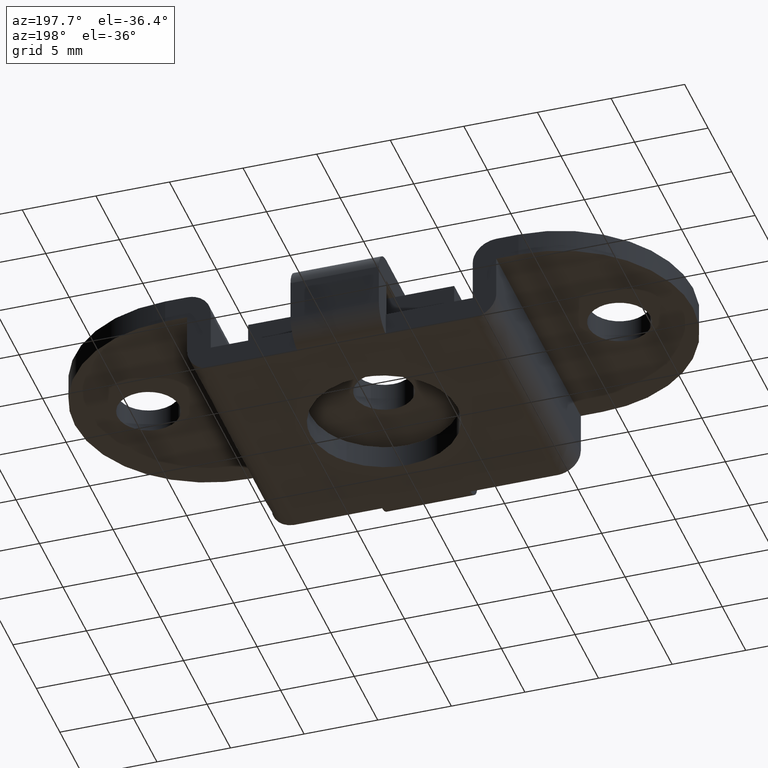
[diagram: clean part render]
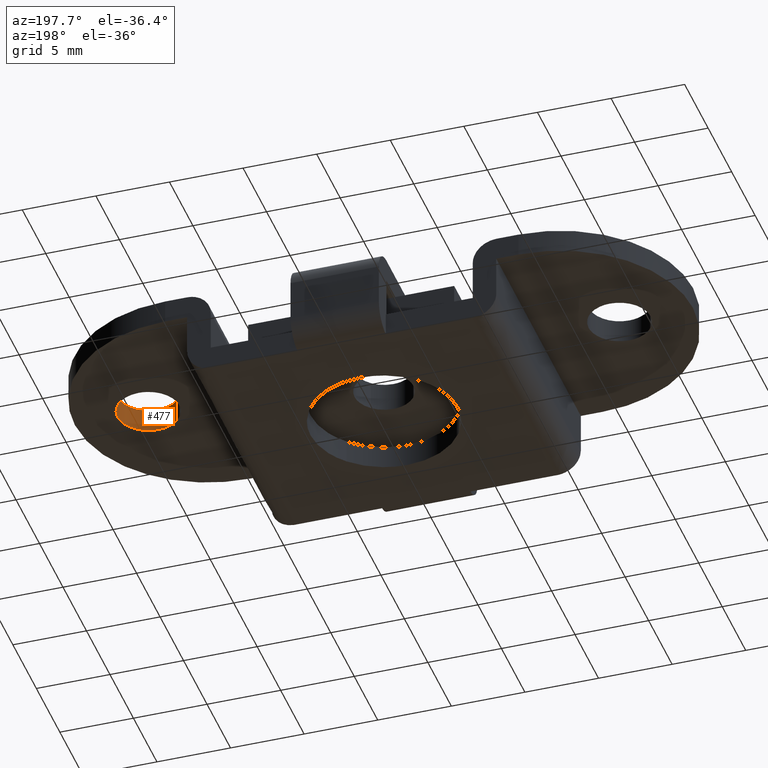
[diagram: same view with one face highlighted and labeled with its STEP entity id]
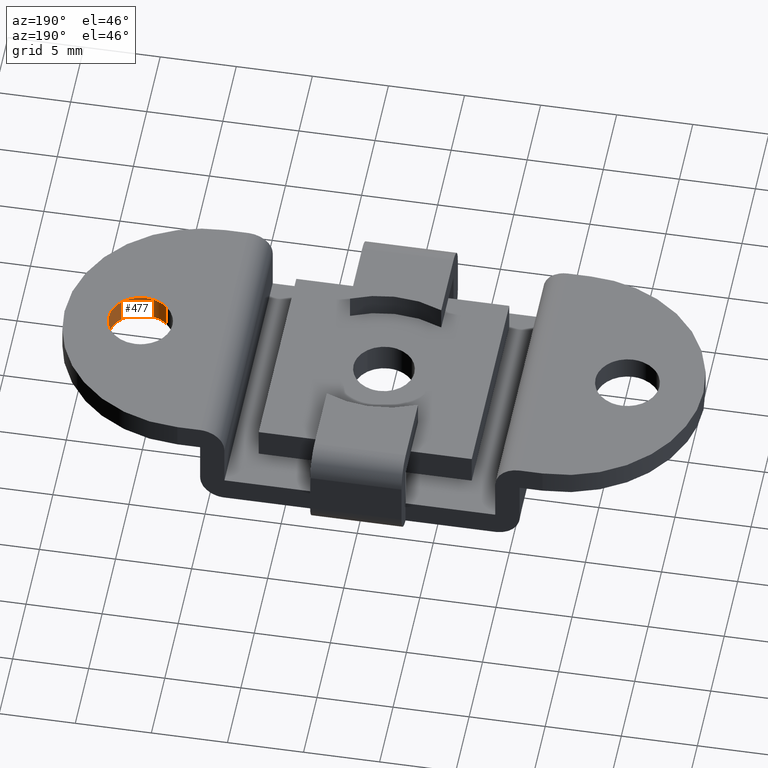
[diagram: same view with one face highlighted and labeled with its STEP entity id]
A machine part, auxiliary view. The second image highlights one B-rep face of the part: STEP entity #477.
A second angle (auxiliary view) of the same face is appended — the face is thin or edge-on in the first view.
In plain terms, the highlighted face is a freeform B-spline surface patch.
Its self-contained STEP definition (entity closure, byte-faithful):
#368=CARTESIAN_POINT('',(14.581260564007110,-1.548282407301260,4.360000000000000));
#369=CARTESIAN_POINT('',(16.129542971308378,-2.967021843294146,4.360000000000001));
#370=CARTESIAN_POINT('',(17.548282407301262,-1.418739435992886,4.360000000000000));
#371=CARTESIAN_POINT('',(18.967021843294145,0.129542971308374,4.360000000000001));
#372=CARTESIAN_POINT('',(17.418739435992890,1.548282407301260,4.360000000000000));
#373=CARTESIAN_POINT('',(14.581260564007110,-1.548282407301260,6.041000000000000));
#374=CARTESIAN_POINT('',(16.129542971308378,-2.967021843294146,6.041000000000002));
#375=CARTESIAN_POINT('',(17.548282407301262,-1.418739435992886,6.041000000000000));
#376=CARTESIAN_POINT('',(18.967021843294145,0.129542971308374,6.041000000000002));
#377=CARTESIAN_POINT('',(17.418739435992890,1.548282407301260,6.041000000000000));
#385=(BOUNDED_SURFACE()B_SPLINE_SURFACE(2,1,((#368,#373),(#369,#374),(#370,#375),(#371,#376),(#372,#377)),.UNSPECIFIED.,.F.,.F.,.U.)B_SPLINE_SURFACE_WITH_KNOTS((3,2,3),(2,2),(0.0,3.479393923934000,6.958787847867999),(0.0,1.0),.UNSPECIFIED.)GEOMETRIC_REPRESENTATION_ITEM()RATIONAL_B_SPLINE_SURFACE(((1.0,1.0),(0.707106781186548,0.707106781186548),(1.0,1.0),(0.707106781186548,0.707106781186548),(1.0,1.0)))REPRESENTATION_ITEM('')SURFACE());
#386=CARTESIAN_POINT('',(15.999999487898320,-2.099999999999938,4.400000000000000));
#387=VERTEX_POINT('',#386);
#388=CARTESIAN_POINT('',(14.581260498776119,-1.548282520513495,4.399999999997583));
#389=VERTEX_POINT('',#388);
#390=CARTESIAN_POINT('',(15.999999487898320,-2.099999999999938,4.400000000000000));
#391=CARTESIAN_POINT('',(15.837738048500670,-2.100027915801006,4.399999999999723));
#392=CARTESIAN_POINT('',(15.480761532178191,-2.058454504587345,4.399999999999127));
#393=CARTESIAN_POINT('',(14.992137915016500,-1.868472685713964,4.399999999998281));
#394=CARTESIAN_POINT('',(14.700879486970109,-1.657914271976027,4.399999999997790));
#395=CARTESIAN_POINT('',(14.581260498776119,-1.548282520513495,4.399999999997583));
#396=B_SPLINE_CURVE_WITH_KNOTS('',3,(#390,#391,#392,#393,#394,#395),.UNSPECIFIED.,.F.,.U.,(4,1,1,4),(0.000000011098330,0.486787928043428,1.070926665411412,1.557714582366830),.UNSPECIFIED.);
#397=EDGE_CURVE('',#387,#389,#396,.T.);
#398=ORIENTED_EDGE('',*,*,#397,.T.);
#399=CARTESIAN_POINT('',(14.581260498520830,-1.548282520279563,6.0));
#400=VERTEX_POINT('',#399);
#401=CARTESIAN_POINT('',(14.581260498776119,-1.548282520513495,4.399999999997583));
#402=CARTESIAN_POINT('',(14.581260498520830,-1.548282520279563,6.0));
#403=QUASI_UNIFORM_CURVE('',1,(#401,#402),.UNSPECIFIED.,.F.,.U.);
#404=EDGE_CURVE('',#389,#400,#403,.T.);
#405=ORIENTED_EDGE('',*,*,#404,.T.);
#406=CARTESIAN_POINT('',(15.999999487898320,-2.099999999999938,6.0));
#407=VERTEX_POINT('',#406);
#408=CARTESIAN_POINT('',(15.999999487898320,-2.099999999999938,6.0));
#409=CARTESIAN_POINT('',(15.862076283162880,-2.100017602895612,5.999999999999991));
#410=CARTESIAN_POINT('',(15.586240718931410,-2.072728873233978,6.000000000000012));
#411=CARTESIAN_POINT('',(15.204084069787680,-1.956390947703279,5.999999999999999));
#412=CARTESIAN_POINT('',(14.864763140071670,-1.779289379170065,5.999999999999996));
#413=CARTESIAN_POINT('',(14.670978065494211,-1.630505774760450,5.999999999999981));
#414=CARTESIAN_POINT('',(14.581260498520830,-1.548282520279563,6.0));
#415=B_SPLINE_CURVE_WITH_KNOTS('',3,(#408,#409,#410,#411,#412,#413,#414),.UNSPECIFIED.,.F.,.U.,(4,1,1,1,4),(0.000000011097158,0.413768375171426,0.827530424680338,1.192625660979388,1.557714582713103),.UNSPECIFIED.);
#416=EDGE_CURVE('',#407,#400,#415,.T.);
#417=ORIENTED_EDGE('',*,*,#416,.F.);
#418=CARTESIAN_POINT('',(18.100000000000001,0.0,6.0));
#419=VERTEX_POINT('',#418);
#420=CARTESIAN_POINT('',(18.100000000000001,0.0,6.0));
#421=CARTESIAN_POINT('',(18.100086939034931,-0.206173555843778,5.999999999999996));
#422=CARTESIAN_POINT('',(18.045160243486059,-0.575514764453041,6.000000000000007));
#423=CARTESIAN_POINT('',(17.844674499679609,-1.035339620001508,5.999999999999998));
#424=CARTESIAN_POINT('',(17.604147260265460,-1.372399615545883,6.000000000000003));
#425=CARTESIAN_POINT('',(17.289459436833379,-1.679547146720291,6.000000000000012));
#426=CARTESIAN_POINT('',(16.920453760059939,-1.906906748417729,5.999999999999973));
#427=CARTESIAN_POINT('',(16.463850793409652,-2.063940389481433,6.000000000000038));
#428=CARTESIAN_POINT('',(16.171808127432030,-2.100047197243688,5.999999999999981));
#429=CARTESIAN_POINT('',(15.999999487898320,-2.099999999999938,6.0));
#430=B_SPLINE_CURVE_WITH_KNOTS('',3,(#420,#421,#422,#423,#424,#425,#426,#427,#428,#429),.UNSPECIFIED.,.F.,.U.,(4,1,1,1,1,1,1,4),(0.000000046078098,0.618504639973074,1.108160000424336,1.494727046472961,1.855502201907417,2.422477338068444,2.783279105107428,3.298693272671217),.UNSPECIFIED.);
#431=EDGE_CURVE('',#419,#407,#430,.T.);
#432=ORIENTED_EDGE('',*,*,#431,.F.);
#433=CARTESIAN_POINT('',(17.418739501479170,1.548282520279557,6.0));
#434=VERTEX_POINT('',#433);
#435=CARTESIAN_POINT('',(17.418739501479170,1.548282520279557,6.0));
#436=CARTESIAN_POINT('',(17.592678430637559,1.389111595608765,5.999999999999996));
#437=CARTESIAN_POINT('',(17.846410872613500,1.062184082451126,6.000000000000013));
#438=CARTESIAN_POINT('',(18.057361464461820,0.516832787514381,5.999999999999973));
#439=CARTESIAN_POINT('',(18.100043193173921,0.172286885963432,6.000000000000020));
#440=CARTESIAN_POINT('',(18.100000000000001,0.0,6.0));
#441=B_SPLINE_CURVE_WITH_KNOTS('',3,(#435,#436,#437,#438,#439,#440),.UNSPECIFIED.,.F.,.U.,(4,1,1,4),(0.000000012917390,0.707277324707163,1.224123831606799,1.740978180980072),.UNSPECIFIED.);
#442=EDGE_CURVE('',#434,#419,#441,.T.);
#443=ORIENTED_EDGE('',*,*,#442,.F.);
#444=CARTESIAN_POINT('',(17.418739501223879,1.548282520513488,4.399999999997584));
#445=VERTEX_POINT('',#444);
#446=CARTESIAN_POINT('',(17.418739501223879,1.548282520513488,4.399999999997584));
#447=CARTESIAN_POINT('',(17.418739501479170,1.548282520279557,6.0));
#448=QUASI_UNIFORM_CURVE('',1,(#446,#447),.UNSPECIFIED.,.F.,.U.);
#449=EDGE_CURVE('',#445,#434,#448,.T.);
#450=ORIENTED_EDGE('',*,*,#449,.F.);
#451=CARTESIAN_POINT('',(18.100000000000001,0.0,4.400000000000000));
#452=VERTEX_POINT('',#451);
#453=CARTESIAN_POINT('',(17.418739501223879,1.548282520513488,4.399999999997584));
#454=CARTESIAN_POINT('',(17.592681788911680,1.389112020961101,4.399999999997831));
#455=CARTESIAN_POINT('',(17.846401465573930,1.062182969129023,4.399999999998338));
#456=CARTESIAN_POINT('',(18.057374580568180,0.516834411454813,4.399999999999197));
#457=CARTESIAN_POINT('',(18.100033360963039,0.172285620716175,4.399999999999730));
#458=CARTESIAN_POINT('',(18.100000000000001,0.0,4.400000000000000));
#459=B_SPLINE_CURVE_WITH_KNOTS('',3,(#453,#454,#455,#456,#457,#458),.UNSPECIFIED.,.F.,.U.,(4,1,1,4),(0.000000012918174,0.707277324848339,1.224123831850597,1.740978181326332),.UNSPECIFIED.);
#460=EDGE_CURVE('',#445,#452,#459,.T.);
#461=ORIENTED_EDGE('',*,*,#460,.T.);
#462=CARTESIAN_POINT('',(18.100000000000001,0.0,4.400000000000000));
#463=CARTESIAN_POINT('',(18.100086939034931,-0.206173555843778,4.399999999999998));
#464=CARTESIAN_POINT('',(18.045160243486059,-0.575514764453041,4.400000000000008));
#465=CARTESIAN_POINT('',(17.844674499679609,-1.035339620001508,4.399999999999999));
#466=CARTESIAN_POINT('',(17.604147260265460,-1.372399615545884,4.400000000000003));
#467=CARTESIAN_POINT('',(17.289459436833379,-1.679547146720291,4.400000000000013));
#468=CARTESIAN_POINT('',(16.920453760059939,-1.906906748417728,4.399999999999976));
#469=CARTESIAN_POINT('',(16.463850793409659,-2.063940389481434,4.400000000000034));
#470=CARTESIAN_POINT('',(16.171808127432030,-2.100047197243687,4.399999999999984));
#471=CARTESIAN_POINT('',(15.999999487898320,-2.099999999999938,4.400000000000000));
#472=B_SPLINE_CURVE_WITH_KNOTS('',3,(#462,#463,#464,#465,#466,#467,#468,#469,#470,#471),.UNSPECIFIED.,.F.,.U.,(4,1,1,1,1,1,1,4),(0.000000046078098,0.618504639973074,1.108160000424336,1.494727046472961,1.855502201907417,2.422477338068444,2.783279105107428,3.298693272671217),.UNSPECIFIED.);
#473=EDGE_CURVE('',#452,#387,#472,.T.);
#474=ORIENTED_EDGE('',*,*,#473,.T.);
#475=EDGE_LOOP('',(#398,#405,#417,#432,#443,#450,#461,#474));
#476=FACE_OUTER_BOUND('',#475,.T.);
#477=ADVANCED_FACE('',(#476),#385,.F.);